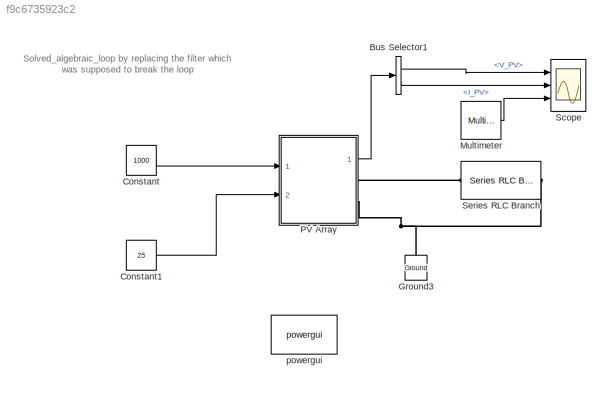
MODEL slx_f9c6735923c2
KIND model
CONFIG AbsTol = auto
CONFIG EnableMultiTasking = off
CONFIG FixedStep = auto
CONFIG MaxStep = 1e-6
CONFIG MinStep = auto
CONFIG RelTol = 1e-4
CONFIG SampleTimeConstraint = Unconstrained
CONFIG Solver = VariableStepAuto
CONFIG SolverName = VariableStepAuto
CONFIG StartTime = 0.0
CONFIG StopTime = 0.02
BLOCK [BusSelector] Bus Selector1
  OutputSignals = V_PV,I_PV
  Ports = [1, 2]
BLOCK [Constant] Constant
  Value = 1000
BLOCK [Constant] Constant1
  Value = 25
BLOCK [Reference] Ground3  REF=powerlib/Elements/Ground
  Ports = [0, 0, 0, 0, 0, 1]
  SourceBlock = powerlib/Elements/Ground
  SourceType = Ground
BLOCK [Reference] Multimeter  REF=powerlib/Measurements/Multimeter
  Ports = [0, 1]
  SourceBlock = powerlib/Measurements/Multimeter
  SourceType = MultimeterPSB
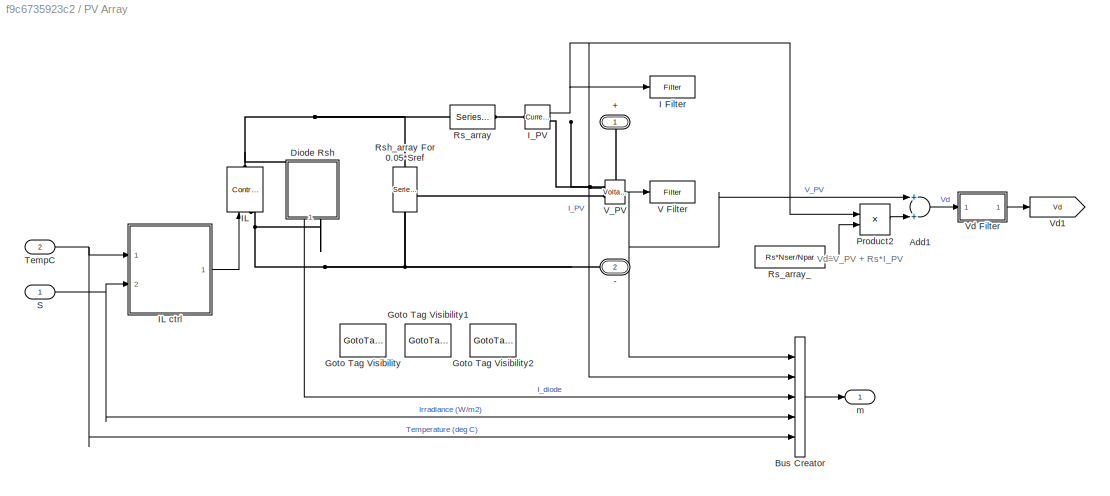
BLOCK [SubSystem] PV Array
  CloseFcn = sps_rtmsupport('CloseFcn',gcbh);
  CopyFcn = sps_rtmsupport('CopyFcn',gcbh);
  DeleteFcn = sps_rtmsupport('DeleteFcn',gcbh);
  DialogController = POWERSYS.PowerSysDialog
  LoadFcn = sps_rtmsupport('LoadFcn',gcbh);
  ModelCloseFcn = sps_rtmsupport('ModelCloseFcn',gcbh);
  NameChangeFcn = sps_rtmsupport('NameChangeFcn',gcbh);
  OpenFcn = %assignin('base','PVMaskOpening',1);\n%open_system(gcb,'mask')\n%assignin('base','PVMaskOpening',0);\nsps_rtmsupport('OpenFcn',gcbh, [3 6 7 23]);
  Ports = [2, 1, 0, 0, 0, 0, 2]
  PostSaveFcn = sps_rtmsupport('PostSaveFcn',gcbh);
  PreCopyFcn = sps_rtmsupport('PreCopyFcn',gcbh);
  PreDeleteFcn = sps_rtmsupport('PreDeleteFcn',gcbh);
  PreSaveFcn = sps_rtmsupport('PreSaveFcn',gcbh);
  RequestExecContextInheritance = off
  StartFcn = sps_rtmsupport('StartFcn',gcbh);
  StopFcn = sps_rtmsupport('StopFcn',gcbh);
  UndoDeleteFcn = sps_rtmsupport('UndoDeleteFcn',gcbh);
  Variant = off
BLOCK [PMIOPort] PV Array/+
  Port = 1
  Side = Right
BLOCK [PMIOPort] PV Array/-
  Port = 2
  Side = Right
BLOCK [Sum] PV Array/Add1
  InputSameDT = off
  OutDataTypeStr = Inherit: Inherit via internal rule
  Ports = [2, 1]
  SaturateOnIntegerOverflow = off
BLOCK [BusCreator] PV Array/Bus Creator
  DisplayOption = bar
  InheritFromInputs = on
  Inputs = 5
  Ports = [5, 1]
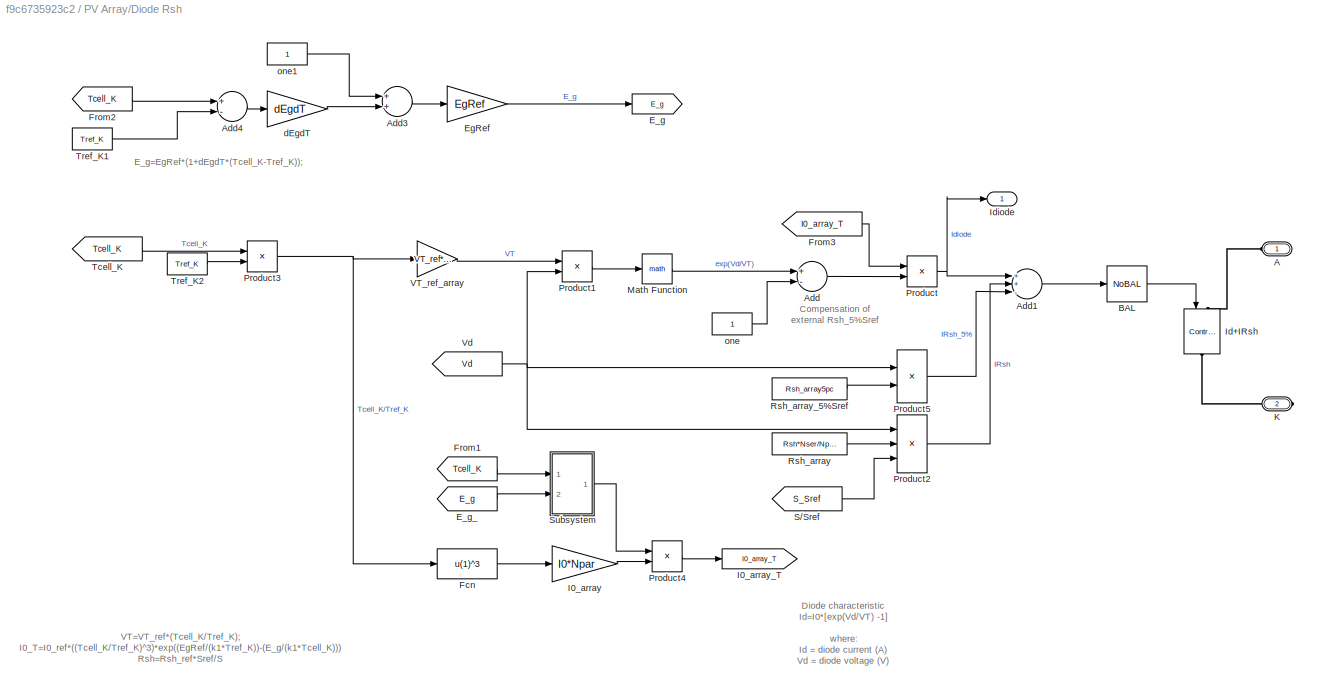
BLOCK [SubSystem] PV Array/Diode Rsh
  Ports = [0, 1, 0, 0, 0, 1, 1]
  RequestExecContextInheritance = off
  Variant = off
BLOCK [PMIOPort] PV Array/Diode Rsh/A
  Port = 1
  Side = Left
BLOCK [Sum] PV Array/Diode Rsh/Add
  InputSameDT = off
  Inputs = +-
  OutDataTypeStr = Inherit: Inherit via internal rule
  Ports = [2, 1]
  SaturateOnIntegerOverflow = off
BLOCK [Sum] PV Array/Diode Rsh/Add1
  InputSameDT = off
  Inputs = ++-
  OutDataTypeStr = Inherit: Inherit via internal rule
  Ports = [3, 1]
  SaturateOnIntegerOverflow = off
BLOCK [Sum] PV Array/Diode Rsh/Add3
  InputSameDT = off
  OutDataTypeStr = Inherit: Inherit via internal rule
  Ports = [2, 1]
  SaturateOnIntegerOverflow = off
BLOCK [Sum] PV Array/Diode Rsh/Add4
  InputSameDT = off
  Inputs = +-
  OutDataTypeStr = Inherit: Inherit via internal rule
  Ports = [2, 1]
  SaturateOnIntegerOverflow = off
BLOCK [Reference] PV Array/Diode Rsh/BAL  REF=spsPVarrayModel/NoBAL
  Ports = [1, 1]
  SourceBlock = spsPVarrayModel/NoBAL
  SourceType = SubSystem
BLOCK [Goto] PV Array/Diode Rsh/E_g
  GotoTag = E_g
BLOCK [From] PV Array/Diode Rsh/E_g_
  GotoTag = E_g
BLOCK [Gain] PV Array/Diode Rsh/EgRef
  Gain = EgRef
  OutDataTypeStr = Inherit: Inherit via internal rule
  ParamDataTypeStr = Inherit: Inherit via internal rule
  SaturateOnIntegerOverflow = off
BLOCK [Fcn] PV Array/Diode Rsh/Fcn
  Expr = u(1)^3
BLOCK [From] PV Array/Diode Rsh/From1
  GotoTag = Tcell_K
  TagVisibility = scoped
BLOCK [From] PV Array/Diode Rsh/From2
  GotoTag = Tcell_K
  TagVisibility = scoped
BLOCK [From] PV Array/Diode Rsh/From3
  GotoTag = I0_array_T
BLOCK [Gain] PV Array/Diode Rsh/I0_array
  Gain = I0*Npar
  OutDataTypeStr = Inherit: Inherit via internal rule
  ParamDataTypeStr = Inherit: Inherit via internal rule
  SaturateOnIntegerOverflow = off
BLOCK [Goto] PV Array/Diode Rsh/I0_array_T
  GotoTag = I0_array_T
BLOCK [Reference] PV Array/Diode Rsh/Id+IRsh  REF=powerlib/Electrical
Sources/Controlled Current Source
  Ports = [1, 0, 0, 0, 0, 1, 1]
  SourceBlock = powerlib/Electrical\nSources/Controlled Current Source
  SourceType = Controlled Current Source
BLOCK [Outport] PV Array/Diode Rsh/Idiode
  IconDisplay = Port number
BLOCK [PMIOPort] PV Array/Diode Rsh/K
  Port = 2
  Side = Right
BLOCK [Math] PV Array/Diode Rsh/Math Function
  Ports = [1, 1]
BLOCK [Product] PV Array/Diode Rsh/Product
  InputSameDT = off
  OutDataTypeStr = Inherit: Inherit via internal rule
  Ports = [2, 1]
  SaturateOnIntegerOverflow = off
BLOCK [Product] PV Array/Diode Rsh/Product1
  InputSameDT = off
  Inputs = /*
  OutDataTypeStr = Inherit: Inherit via internal rule
  Ports = [2, 1]
  SaturateOnIntegerOverflow = off
BLOCK [Product] PV Array/Diode Rsh/Product2
  InputSameDT = off
  Inputs = */*
  OutDataTypeStr = Inherit: Inherit via internal rule
  Ports = [3, 1]
  SaturateOnIntegerOverflow = off
BLOCK [Product] PV Array/Diode Rsh/Product3
  InputSameDT = off
  Inputs = */
  OutDataTypeStr = Inherit: Inherit via internal rule
  Ports = [2, 1]
  SaturateOnIntegerOverflow = off
BLOCK [Product] PV Array/Diode Rsh/Product4
  InputSameDT = off
  Inputs = **
  OutDataTypeStr = Inherit: Inherit via internal rule
  Ports = [2, 1]
  SaturateOnIntegerOverflow = off
BLOCK [Product] PV Array/Diode Rsh/Product5
  InputSameDT = off
  Inputs = */
  OutDataTypeStr = Inherit: Inherit via internal rule
  Ports = [2, 1]
  SaturateOnIntegerOverflow = off
BLOCK [Constant] PV Array/Diode Rsh/Rsh_array
  Value = Rsh*Nser/Npar
BLOCK [Constant] PV Array/Diode Rsh/Rsh_array_5%Sref
  Value = Rsh_array5pc
BLOCK [From] PV Array/Diode Rsh/S//Sref
  GotoTag = S_Sref
  TagVisibility = scoped
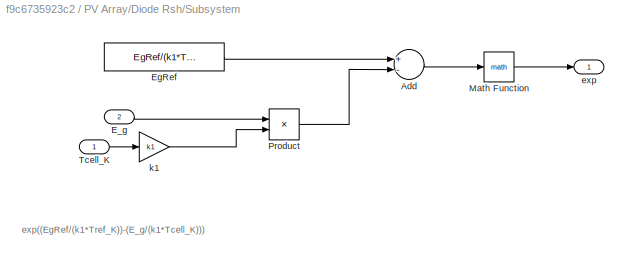
BLOCK [SubSystem] PV Array/Diode Rsh/Subsystem
  Ports = [2, 1]
  RequestExecContextInheritance = off
  Variant = off
BLOCK [Sum] PV Array/Diode Rsh/Subsystem/Add
  InputSameDT = off
  Inputs = +-
  OutDataTypeStr = Inherit: Inherit via internal rule
  Ports = [2, 1]
  SaturateOnIntegerOverflow = off
BLOCK [Inport] PV Array/Diode Rsh/Subsystem/E_g
  IconDisplay = Port number
  Port = 2
BLOCK [Constant] PV Array/Diode Rsh/Subsystem/EgRef
  Value = EgRef/(k1*Tref_K)
BLOCK [Math] PV Array/Diode Rsh/Subsystem/Math Function
  Ports = [1, 1]
BLOCK [Product] PV Array/Diode Rsh/Subsystem/Product
  InputSameDT = off
  Inputs = */
  OutDataTypeStr = Inherit: Inherit via internal rule
  Ports = [2, 1]
  RndMeth = Floor
  SaturateOnIntegerOverflow = off
BLOCK [Inport] PV Array/Diode Rsh/Subsystem/Tcell_K
  IconDisplay = Port number
BLOCK [Outport] PV Array/Diode Rsh/Subsystem/exp
  IconDisplay = Port number
BLOCK [Gain] PV Array/Diode Rsh/Subsystem/k1
  Gain = k1
  OutDataTypeStr = Inherit: Inherit via internal rule
  ParamDataTypeStr = Inherit: Inherit via internal rule
  SaturateOnIntegerOverflow = off
BLOCK [From] PV Array/Diode Rsh/Tcell_K
  GotoTag = Tcell_K
  TagVisibility = scoped
BLOCK [Constant] PV Array/Diode Rsh/Tref_K1
  Value = Tref_K
BLOCK [Constant] PV Array/Diode Rsh/Tref_K2
  Value = Tref_K
BLOCK [Gain] PV Array/Diode Rsh/VT_ref_array
  Gain = VT_ref*Nser
  OutDataTypeStr = Inherit: Inherit via internal rule
  ParamDataTypeStr = Inherit: Inherit via internal rule
  SaturateOnIntegerOverflow = off
BLOCK [From] PV Array/Diode Rsh/Vd
  GotoTag = Vd
  TagVisibility = scoped
BLOCK [Gain] PV Array/Diode Rsh/dEgdT
  Gain = dEgdT
  OutDataTypeStr = Inherit: Inherit via internal rule
  ParamDataTypeStr = Inherit: Inherit via internal rule
  SaturateOnIntegerOverflow = off
BLOCK [Constant] PV Array/Diode Rsh/one
BLOCK [Constant] PV Array/Diode Rsh/one1
BLOCK [GotoTagVisibility] PV Array/Goto Tag Visibility
  GotoTag = S_Sref
BLOCK [GotoTagVisibility] PV Array/Goto Tag Visibility1
  GotoTag = Vd
BLOCK [GotoTagVisibility] PV Array/Goto Tag Visibility2
  GotoTag = Tcell_K
BLOCK [Reference] PV Array/I Filter  REF=spsPVarrayModel/Filter
  Commented = on
  Ports = [1, 1]
  SourceBlock = spsPVarrayModel/Filter
  SourceType = SubSystem
BLOCK [Reference] PV Array/IL  REF=powerlib/Electrical
Sources/Controlled Current Source
  Ports = [1, 0, 0, 0, 0, 1, 1]
  SourceBlock = powerlib/Electrical\nSources/Controlled Current Source
  SourceType = Controlled Current Source
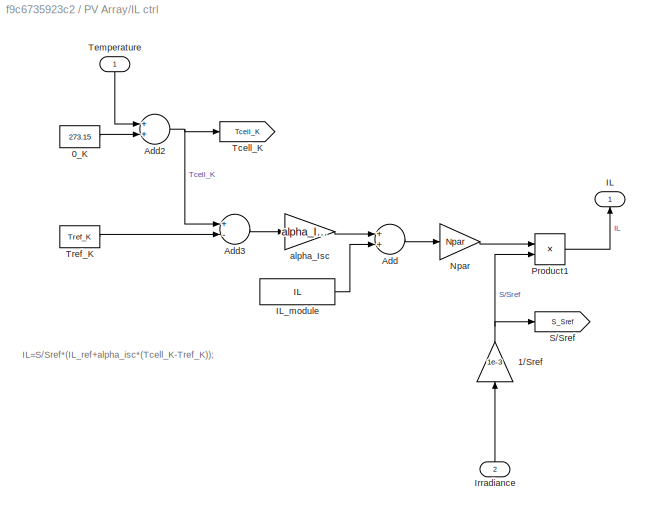
BLOCK [SubSystem] PV Array/IL ctrl
  Ports = [2, 1]
  RequestExecContextInheritance = off
  Variant = off
BLOCK [Constant] PV Array/IL ctrl/0_K
  Value = 273.15
BLOCK [Gain] PV Array/IL ctrl/1//Sref
  Gain = 1e-3
  OutDataTypeStr = Inherit: Inherit via internal rule
  ParamDataTypeStr = Inherit: Inherit via internal rule
  SaturateOnIntegerOverflow = off
BLOCK [Sum] PV Array/IL ctrl/Add
  InputSameDT = off
  OutDataTypeStr = Inherit: Inherit via internal rule
  Ports = [2, 1]
  SaturateOnIntegerOverflow = off
BLOCK [Sum] PV Array/IL ctrl/Add2
  InputSameDT = off
  OutDataTypeStr = Inherit: Inherit via internal rule
  Ports = [2, 1]
  SaturateOnIntegerOverflow = off
BLOCK [Sum] PV Array/IL ctrl/Add3
  InputSameDT = off
  Inputs = +-
  OutDataTypeStr = Inherit: Inherit via internal rule
  Ports = [2, 1]
  SaturateOnIntegerOverflow = off
BLOCK [Outport] PV Array/IL ctrl/IL
  IconDisplay = Port number
BLOCK [Constant] PV Array/IL ctrl/IL_module
  Value = IL
BLOCK [Inport] PV Array/IL ctrl/Irradiance
  IconDisplay = Port number
  Port = 2
BLOCK [Gain] PV Array/IL ctrl/Npar
  Gain = Npar
  OutDataTypeStr = Inherit: Inherit via internal rule
  ParamDataTypeStr = Inherit: Inherit via internal rule
  SaturateOnIntegerOverflow = off
BLOCK [Product] PV Array/IL ctrl/Product1
  InputSameDT = off
  Inputs = **
  OutDataTypeStr = Inherit: Inherit via internal rule
  Ports = [2, 1]
  SaturateOnIntegerOverflow = off
BLOCK [Goto] PV Array/IL ctrl/S//Sref
  GotoTag = S_Sref
  TagVisibility = scoped
BLOCK [Goto] PV Array/IL ctrl/Tcell_K
  GotoTag = Tcell_K
  TagVisibility = scoped
BLOCK [Inport] PV Array/IL ctrl/Temperature
  IconDisplay = Port number
BLOCK [Constant] PV Array/IL ctrl/Tref_K
  Value = Tref_K
BLOCK [Gain] PV Array/IL ctrl/alpha_Isc
  Gain = alpha_Isc
  OutDataTypeStr = Inherit: Inherit via internal rule
  ParamDataTypeStr = Inherit: Inherit via internal rule
  SaturateOnIntegerOverflow = off
BLOCK [Reference] PV Array/I_PV  REF=powerlib/Measurements/Current Measurement
  Ports = [0, 1, 0, 0, 0, 1, 1]
  SourceBlock = powerlib/Measurements/Current Measurement
  SourceType = Current Measurement
BLOCK [Product] PV Array/Product2
  InputSameDT = off
  Inputs = **
  OutDataTypeStr = Inherit: Inherit via internal rule
  Ports = [2, 1]
  SaturateOnIntegerOverflow = off
BLOCK [Reference] PV Array/Rs_array  REF=powerlib/Elements/Series RLC Branch
  Ports = [0, 0, 0, 0, 0, 1, 1]
  SourceBlock = powerlib/Elements/Series RLC Branch
  SourceType = Series RLC Branch
BLOCK [Constant] PV Array/Rs_array_
  Value = Rs*Nser/Npar
BLOCK [Reference] PV Array/Rsh_array For 0.05*Sref  REF=powerlib/Elements/Series RLC Branch
  Ports = [0, 0, 0, 0, 0, 1, 1]
  SourceBlock = powerlib/Elements/Series RLC Branch
  SourceType = Series RLC Branch
BLOCK [Inport] PV Array/S
  IconDisplay = Port number
BLOCK [Inport] PV Array/TempC
  IconDisplay = Port number
  Port = 2
BLOCK [Reference] PV Array/V Filter  REF=spsPVarrayModel/Filter
  Commented = on
  Ports = [1, 1]
  SourceBlock = spsPVarrayModel/Filter
  SourceType = SubSystem
BLOCK [Reference] PV Array/V_PV  REF=powerlib/Measurements/Voltage Measurement
  Ports = [0, 1, 0, 0, 0, 2]
  SourceBlock = powerlib/Measurements/Voltage Measurement
  SourceType = Voltage Measurement
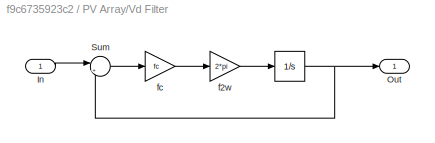
BLOCK [SubSystem] PV Array/Vd Filter
  Ports = [1, 1]
  RequestExecContextInheritance = off
  Variant = off
BLOCK [Integrator] PV Array/Vd Filter/ 
  InitialCondition = Voc*Nser
  Ports = [1, 1]
BLOCK [Inport] PV Array/Vd Filter/In
  IconDisplay = Port number
BLOCK [Outport] PV Array/Vd Filter/Out
  IconDisplay = Port number
BLOCK [Sum] PV Array/Vd Filter/Sum
  IconShape = round
  InputSameDT = off
  Inputs = |+-
  OutDataTypeStr = Inherit: Inherit via internal rule
  Ports = [2, 1]
  SaturateOnIntegerOverflow = off
BLOCK [Gain] PV Array/Vd Filter/f2w
  Gain = 2*pi
  OutDataTypeStr = Inherit: Inherit via internal rule
  ParamDataTypeStr = Inherit: Inherit via internal rule
  SaturateOnIntegerOverflow = off
BLOCK [Gain] PV Array/Vd Filter/fc
  Gain = fc
  OutDataTypeStr = Inherit: Inherit via internal rule
  ParamDataTypeStr = Inherit: Inherit via internal rule
  SaturateOnIntegerOverflow = off
BLOCK [Goto] PV Array/Vd1
  GotoTag = Vd
  TagVisibility = scoped
BLOCK [Outport] PV Array/m
  IconDisplay = Port number
BLOCK [Scope] Scope
  NumInputPorts = 3
  Ports = [3]
  ScopeSpecificationString = Simulink.scopes.TimeScopeBlockCfg('CurrentConfiguration', extmgr.ConfigurationSet(extmgr.Configuration('Core','General UI',true),extmgr.Configuration('Core','Source UI',true),extmgr.Configuration('Sources','WiredSimulink',true),extmgr.Configuration('Visuals','Time Domain',true,'SerializedDisplays',{struct('MinYLimReal','-51.89111','MaxYLimReal','408.71747','YLabelReal','','MinYLimMag','0.00000','M...<+1383ch>
BLOCK [Reference] Series RLC Branch  REF=powerlib/Elements/Series RLC Branch
  Ports = [0, 0, 0, 0, 0, 1, 1]
  SourceBlock = powerlib/Elements/Series RLC Branch
  SourceType = Series RLC Branch
BLOCK [Reference] powergui  REF=powerlib/powergui
  Ports = []
  Priority = 1
  SourceBlock = powerlib/powergui
  SourceType = PSB option menu block
ANNOTATION (root): Solved_algebraic_loop by replacing the filter which was supposed to break the loop
ANNOTATION PV Array: Vd=V_PV + Rs*I_PV
ANNOTATION PV Array/Diode Rsh: Compensation of external Rsh_5%Sref
ANNOTATION PV Array/Diode Rsh: Diode characteristic Id=I0*[exp(Vd/VT) -1] where: Id = diode current (A) Vd = diode voltage (V) I0 = diode saturation current (A) VT = temperature voltage = k*Tcell_K/q*nI*Ncell*Nser Tcell_K = cell temperature (K), k = Boltzman constant = 1.3806e-23 J.K^-1 q = electron charge = 1.6022e-19 C nI = diode ideality factor Ncell= number of series-connected cells per module Nser = number of series-connec...<+22ch>
ANNOTATION PV Array/Diode Rsh: E_g=EgRef*(1+dEgdT*(Tcell_K-Tref_K));
ANNOTATION PV Array/Diode Rsh: VT=VT_ref*(Tcell_K/Tref_K); I0_T=I0_ref*((Tcell_K/Tref_K)^3)*exp((EgRef/(k1*Tref_K))-(E_g/(k1*Tcell_K))) Rsh=Rsh_ref*Sref/S
ANNOTATION PV Array/Diode Rsh/Subsystem: exp((EgRef/(k1*Tref_K))-(E_g/(k1*Tcell_K)))
ANNOTATION PV Array/IL ctrl: IL=S/Sref*(IL_ref+alpha_isc*(Tcell_K-Tref_K));
LINE Bus Selector1:1 -> Scope:1
LINE Bus Selector1:2 -> Scope:2
LINE Constant1:1 -> PV Array:2
LINE Constant:1 -> PV Array:1
LINE Multimeter:1 -> Scope:3
LINE PV Array:1 -> Bus Selector1:1
PNET net1: Ground3:LConn1 -- PV Array:RConn2 -- Series RLC Branch:RConn1
PLINE PV Array:RConn1 -- Series RLC Branch:LConn1
note: PNET lines group multi-terminal physical nets as a canonical sorted terminal list (undirected conserving connections); 2-terminal nets keep the pairwise PLINE form
